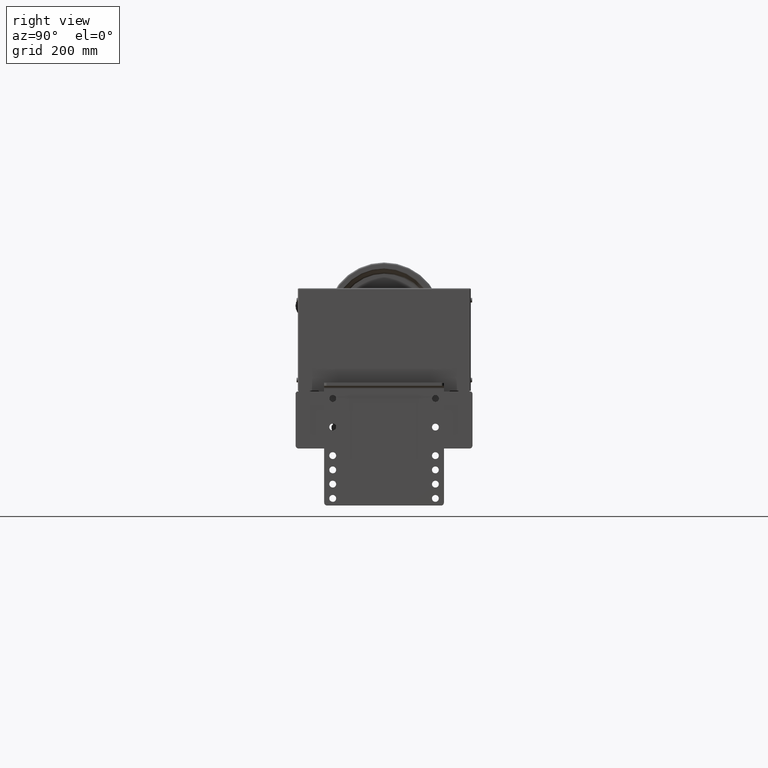
[diagram: clean part render]
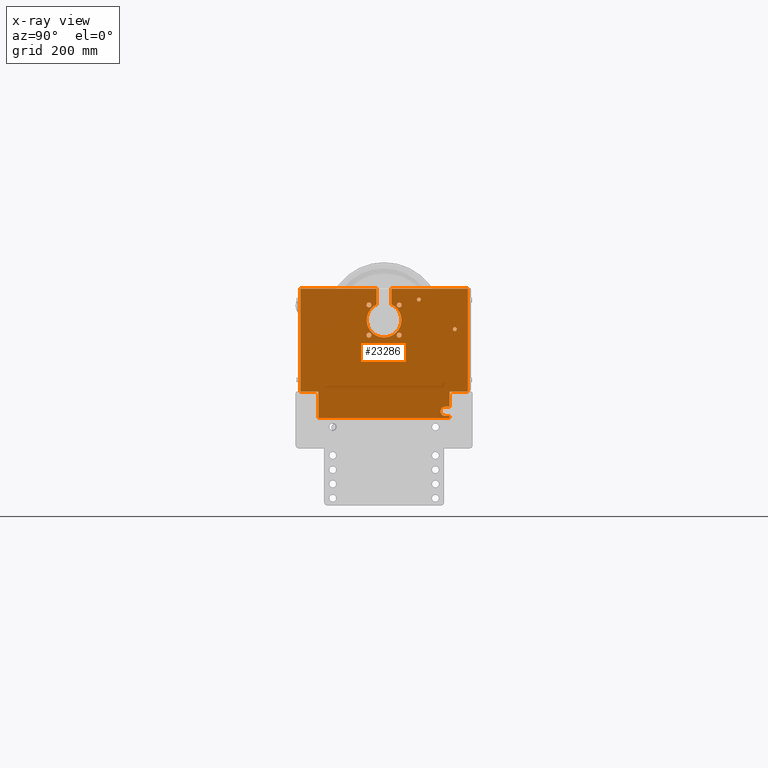
[diagram: x-ray — body ghosted, one internal face saturated and labeled with its STEP entity id]
A machine part, right view, then the same camera in x-ray: the body is ghosted and one INTERNAL B-rep face — a face not visible from any outside direction — is saturated and labeled: STEP entity #23286.
In plain terms, the highlighted planar face has unit normal (-1, -0, 0).
Its self-contained STEP definition (entity closure, byte-faithful):
#21658=CARTESIAN_POINT('',(-22.141504294496144,3.483495705504765,1.500000000000000));
#21659=VERTEX_POINT('',#21658);
#21668=CARTESIAN_POINT('',(-30.891504294496144,3.483495705504765,1.500000000000000));
#21669=VERTEX_POINT('',#21668);
#21670=CARTESIAN_POINT('',(-26.516504294496144,3.483495705504765,1.500000000000000));
#21671=DIRECTION('',(0.0,0.0,1.0));
#21672=DIRECTION('',(1.0,0.0,0.0));
#21673=AXIS2_PLACEMENT_3D('',#21670,#21671,#21672);
#21674=CIRCLE('',#21673,4.375000000000000);
#21675=EDGE_CURVE('',#21659,#21669,#21674,.T.);
#21700=CARTESIAN_POINT('',(30.891504294494780,3.483495705504765,1.500000000000000));
#21701=VERTEX_POINT('',#21700);
#21710=CARTESIAN_POINT('',(22.141504294494780,3.483495705504765,1.500000000000000));
#21711=VERTEX_POINT('',#21710);
#21712=CARTESIAN_POINT('',(26.516504294494780,3.483495705504765,1.500000000000000));
#21713=DIRECTION('',(0.0,0.0,1.0));
#21714=DIRECTION('',(1.0,0.0,0.0));
#21715=AXIS2_PLACEMENT_3D('',#21712,#21713,#21714);
#21716=CIRCLE('',#21715,4.375000000000000);
#21717=EDGE_CURVE('',#21701,#21711,#21716,.T.);
#21742=CARTESIAN_POINT('',(30.891504294494780,56.516504294495917,1.500000000000000));
#21743=VERTEX_POINT('',#21742);
#21752=CARTESIAN_POINT('',(22.141504294494780,56.516504294495917,1.500000000000000));
#21753=VERTEX_POINT('',#21752);
#21754=CARTESIAN_POINT('',(26.516504294494780,56.516504294495917,1.500000000000000));
#21755=DIRECTION('',(0.0,0.0,1.0));
#21756=DIRECTION('',(1.0,0.0,0.0));
#21757=AXIS2_PLACEMENT_3D('',#21754,#21755,#21756);
#21758=CIRCLE('',#21757,4.375000000000000);
#21759=EDGE_CURVE('',#21743,#21753,#21758,.T.);
#21784=CARTESIAN_POINT('',(-22.141504294496372,56.516504294495917,1.500000000000000));
#21785=VERTEX_POINT('',#21784);
#21794=CARTESIAN_POINT('',(-30.891504294496372,56.516504294495917,1.500000000000000));
#21795=VERTEX_POINT('',#21794);
#21796=CARTESIAN_POINT('',(-26.516504294496372,56.516504294495917,1.500000000000000));
#21797=DIRECTION('',(0.0,0.0,1.0));
#21798=DIRECTION('',(1.0,0.0,0.0));
#21799=AXIS2_PLACEMENT_3D('',#21796,#21797,#21798);
#21800=CIRCLE('',#21799,4.375000000000000);
#21801=EDGE_CURVE('',#21785,#21795,#21800,.T.);
#21996=CARTESIAN_POINT('',(-57.550000000000907,66.000000000000227,1.500000000000000));
#21997=VERTEX_POINT('',#21996);
#22013=CARTESIAN_POINT('',(-64.450000000000912,66.000000000000227,1.500000000000000));
#22014=VERTEX_POINT('',#22013);
#22021=CARTESIAN_POINT('',(-61.000000000000909,66.000000000000227,1.500000000000000));
#22022=DIRECTION('',(0.0,0.0,-1.0));
#22023=DIRECTION('',(1.0,0.0,0.0));
#22024=AXIS2_PLACEMENT_3D('',#22021,#22022,#22023);
#22025=CIRCLE('',#22024,3.450000000000000);
#22026=EDGE_CURVE('',#21997,#22014,#22025,.T.);
#22038=CARTESIAN_POINT('',(-120.550000000000910,14.000000000000227,1.500000000000000));
#22039=VERTEX_POINT('',#22038);
#22055=CARTESIAN_POINT('',(-127.450000000000910,14.000000000000227,1.500000000000000));
#22056=VERTEX_POINT('',#22055);
#22063=CARTESIAN_POINT('',(-124.000000000000910,14.000000000000227,1.500000000000000));
#22064=DIRECTION('',(0.0,0.0,-1.0));
#22065=DIRECTION('',(1.0,0.0,0.0));
#22066=AXIS2_PLACEMENT_3D('',#22063,#22064,#22065);
#22067=CIRCLE('',#22066,3.450000000000000);
#22068=EDGE_CURVE('',#22039,#22056,#22067,.T.);
#22211=CARTESIAN_POINT('',(-124.000000000000910,14.000000000000227,1.500000000000000));
#22212=DIRECTION('',(0.0,0.0,-1.0));
#22213=DIRECTION('',(1.0,0.0,0.0));
#22214=AXIS2_PLACEMENT_3D('',#22211,#22212,#22213);
#22215=CIRCLE('',#22214,3.450000000000000);
#22216=EDGE_CURVE('',#22056,#22039,#22215,.T.);
#22235=CARTESIAN_POINT('',(-61.000000000000909,66.000000000000227,1.500000000000000));
#22236=DIRECTION('',(0.0,0.0,-1.0));
#22237=DIRECTION('',(1.0,0.0,0.0));
#22238=AXIS2_PLACEMENT_3D('',#22235,#22236,#22237);
#22239=CIRCLE('',#22238,3.450000000000000);
#22240=EDGE_CURVE('',#22014,#21997,#22239,.T.);
#22354=CARTESIAN_POINT('',(147.000000000000910,-94.999999999999773,1.500000000000000));
#22355=VERTEX_POINT('',#22354);
#22356=CARTESIAN_POINT('',(147.000000000000910,85.000000000000341,1.500000000000000));
#22357=VERTEX_POINT('',#22356);
#22358=CARTESIAN_POINT('',(147.000000000000910,-94.999999999999773,1.500000000000000));
#22359=DIRECTION('',(0.0,1.0,0.0));
#22360=VECTOR('',#22359,180.000000000000110);
#22361=LINE('',#22358,#22360);
#22362=EDGE_CURVE('',#22355,#22357,#22361,.T.);
#22437=CARTESIAN_POINT('',(-147.000000000000910,85.000000000000227,1.500000000000000));
#22438=VERTEX_POINT('',#22437);
#22439=CARTESIAN_POINT('',(-147.000000000001080,-94.999999999999773,1.500000000000000));
#22440=VERTEX_POINT('',#22439);
#22441=CARTESIAN_POINT('',(-147.000000000000910,85.000000000000227,1.500000000000000));
#22442=DIRECTION('',(0.0,-1.0,0.0));
#22443=VECTOR('',#22442,180.0);
#22444=LINE('',#22441,#22443);
#22445=EDGE_CURVE('',#22438,#22440,#22444,.T.);
#22516=CARTESIAN_POINT('',(-115.000000000001360,-141.999999999999770,1.500000000000000));
#22517=VERTEX_POINT('',#22516);
#22518=CARTESIAN_POINT('',(115.0,-141.999999999999770,1.500000000000000));
#22519=VERTEX_POINT('',#22518);
#22520=CARTESIAN_POINT('',(-115.000000000001360,-141.999999999999770,1.500000000000000));
#22521=DIRECTION('',(1.0,0.0,0.0));
#22522=VECTOR('',#22521,230.000000000001360);
#22523=LINE('',#22520,#22522);
#22524=EDGE_CURVE('',#22517,#22519,#22523,.T.);
#22601=CARTESIAN_POINT('',(12.999999999999091,85.000000000000455,1.500000000000000));
#22602=VERTEX_POINT('',#22601);
#22609=CARTESIAN_POINT('',(12.999999999999091,85.000000000000455,1.500000000000000));
#22610=DIRECTION('',(1.0,0.0,0.0));
#22611=VECTOR('',#22610,134.000000000001820);
#22612=LINE('',#22609,#22611);
#22613=EDGE_CURVE('',#22602,#22357,#22612,.T.);
#22631=CARTESIAN_POINT('',(114.999999999999090,-94.999999999999773,1.500000000000000));
#22632=VERTEX_POINT('',#22631);
#22633=CARTESIAN_POINT('',(147.000000000000910,-94.999999999999773,1.500000000000000));
#22634=DIRECTION('',(-1.0,0.0,0.0));
#22635=VECTOR('',#22634,32.000000000001819);
#22636=LINE('',#22633,#22635);
#22637=EDGE_CURVE('',#22355,#22632,#22636,.T.);
#22671=CARTESIAN_POINT('',(-13.000000000000682,85.000000000000227,1.500000000000000));
#22672=VERTEX_POINT('',#22671);
#22673=CARTESIAN_POINT('',(-147.000000000000910,85.000000000000227,1.500000000000000));
#22674=DIRECTION('',(1.0,0.0,0.0));
#22675=VECTOR('',#22674,134.000000000000230);
#22676=LINE('',#22673,#22675);
#22677=EDGE_CURVE('',#22438,#22672,#22676,.T.);
#22720=CARTESIAN_POINT('',(114.999999999999090,-94.999999999999773,1.500000000000000));
#22721=DIRECTION('',(0.0,-1.0,0.0));
#22722=VECTOR('',#22721,47.0);
#22723=LINE('',#22720,#22722);
#22724=EDGE_CURVE('',#22632,#22519,#22723,.T.);
#22894=CARTESIAN_POINT('',(-115.000000000000910,-137.999999999999770,1.500000000000000));
#22895=VERTEX_POINT('',#22894);
#22896=CARTESIAN_POINT('',(-115.000000000001360,-141.999999999999770,1.500000000000000));
#22897=DIRECTION('',(1.136868E-013,1.0,0.0));
#22898=VECTOR('',#22897,4.0);
#22899=LINE('',#22896,#22898);
#22900=EDGE_CURVE('',#22517,#22895,#22899,.T.);
#22925=CARTESIAN_POINT('',(-13.000000000001137,57.590759322643180,1.500000000000000));
#22926=VERTEX_POINT('',#22925);
#22927=CARTESIAN_POINT('',(-13.000000000000682,85.000000000000227,1.500000000000000));
#22928=DIRECTION('',(0.0,-1.0,0.0));
#22929=VECTOR('',#22928,27.409240677357047);
#22930=LINE('',#22927,#22929);
#22931=EDGE_CURVE('',#22672,#22926,#22930,.T.);
#22949=CARTESIAN_POINT('',(12.999999999999091,57.590759322643180,1.500000000000000));
#22950=VERTEX_POINT('',#22949);
#22951=CARTESIAN_POINT('',(1.818989E-012,29.999999999996817,1.500000000000000));
#22952=DIRECTION('',(0.0,0.0,1.0));
#22953=DIRECTION('',(1.0,0.0,0.0));
#22954=AXIS2_PLACEMENT_3D('',#22951,#22952,#22953);
#22955=CIRCLE('',#22954,30.500000000000000);
#22956=EDGE_CURVE('',#22926,#22950,#22955,.T.);
#22974=CARTESIAN_POINT('',(12.999999999999091,57.590759322643180,1.500000000000000));
#22975=DIRECTION('',(0.0,1.0,0.0));
#22976=VECTOR('',#22975,27.409240677357275);
#22977=LINE('',#22974,#22976);
#22978=EDGE_CURVE('',#22950,#22602,#22977,.T.);
#23031=CARTESIAN_POINT('',(-107.000000000000910,-137.999999999999770,1.500000000000000));
#23032=VERTEX_POINT('',#23031);
#23033=CARTESIAN_POINT('',(-115.000000000000910,-137.999999999999770,1.500000000000000));
#23034=DIRECTION('',(1.0,0.0,0.0));
#23035=VECTOR('',#23034,8.0);
#23036=LINE('',#23033,#23035);
#23037=EDGE_CURVE('',#22895,#23032,#23036,.T.);
#23055=CARTESIAN_POINT('',(-107.000000000000910,-121.999999999999770,1.500000000000000));
#23056=VERTEX_POINT('',#23055);
#23057=CARTESIAN_POINT('',(-107.000000000000910,-129.999999999999770,1.500000000000000));
#23058=DIRECTION('',(0.0,0.0,1.0));
#23059=DIRECTION('',(1.0,0.0,0.0));
#23060=AXIS2_PLACEMENT_3D('',#23057,#23058,#23059);
#23061=CIRCLE('',#23060,8.0);
#23062=EDGE_CURVE('',#23032,#23056,#23061,.T.);
#23080=CARTESIAN_POINT('',(-115.000000000000910,-121.999999999999770,1.500000000000000));
#23081=VERTEX_POINT('',#23080);
#23082=CARTESIAN_POINT('',(-107.000000000000910,-121.999999999999770,1.500000000000000));
#23083=DIRECTION('',(-1.0,0.0,0.0));
#23084=VECTOR('',#23083,8.0);
#23085=LINE('',#23082,#23084);
#23086=EDGE_CURVE('',#23056,#23081,#23085,.T.);
#23104=CARTESIAN_POINT('',(-115.000000000000910,-94.999999999999773,1.500000000000000));
#23105=VERTEX_POINT('',#23104);
#23106=CARTESIAN_POINT('',(-115.000000000000910,-121.999999999999770,1.500000000000000));
#23107=DIRECTION('',(0.0,1.0,0.0));
#23108=VECTOR('',#23107,27.0);
#23109=LINE('',#23106,#23108);
#23110=EDGE_CURVE('',#23081,#23105,#23109,.T.);
#23130=CARTESIAN_POINT('',(-115.000000000000910,-94.999999999999773,1.500000000000000));
#23131=DIRECTION('',(-1.0,0.0,0.0));
#23132=VECTOR('',#23131,32.000000000000171);
#23133=LINE('',#23130,#23132);
#23134=EDGE_CURVE('',#23105,#22440,#23133,.T.);
#23175=CARTESIAN_POINT('',(-26.516504294496372,56.516504294495917,1.500000000000000));
#23176=DIRECTION('',(0.0,0.0,1.0));
#23177=DIRECTION('',(1.0,0.0,0.0));
#23178=AXIS2_PLACEMENT_3D('',#23175,#23176,#23177);
#23179=CIRCLE('',#23178,4.375000000000000);
#23180=EDGE_CURVE('',#21795,#21785,#23179,.T.);
#23193=CARTESIAN_POINT('',(26.516504294494780,56.516504294495917,1.500000000000000));
#23194=DIRECTION('',(0.0,0.0,1.0));
#23195=DIRECTION('',(1.0,0.0,0.0));
#23196=AXIS2_PLACEMENT_3D('',#23193,#23194,#23195);
#23197=CIRCLE('',#23196,4.375000000000000);
#23198=EDGE_CURVE('',#21753,#21743,#23197,.T.);
#23211=CARTESIAN_POINT('',(26.516504294494780,3.483495705504765,1.500000000000000));
#23212=DIRECTION('',(0.0,0.0,1.0));
#23213=DIRECTION('',(1.0,0.0,0.0));
#23214=AXIS2_PLACEMENT_3D('',#23211,#23212,#23213);
#23215=CIRCLE('',#23214,4.375000000000000);
#23216=EDGE_CURVE('',#21711,#21701,#23215,.T.);
#23229=CARTESIAN_POINT('',(-26.516504294496144,3.483495705504765,1.500000000000000));
#23230=DIRECTION('',(0.0,0.0,1.0));
#23231=DIRECTION('',(1.0,0.0,0.0));
#23232=AXIS2_PLACEMENT_3D('',#23229,#23230,#23231);
#23233=CIRCLE('',#23232,4.375000000000000);
#23234=EDGE_CURVE('',#21669,#21659,#23233,.T.);
#23239=CARTESIAN_POINT('',(-1.962729134460005,-19.719278056207941,1.500000000000000));
#23240=DIRECTION('',(0.0,0.0,1.0));
#23241=DIRECTION('',(1.0,0.0,0.0));
#23242=AXIS2_PLACEMENT_3D('',#23239,#23240,#23241);
#23243=PLANE('',#23242);
#23244=ORIENTED_EDGE('',*,*,#22362,.T.);
#23245=ORIENTED_EDGE('',*,*,#22613,.F.);
#23246=ORIENTED_EDGE('',*,*,#22978,.F.);
#23247=ORIENTED_EDGE('',*,*,#22956,.F.);
#23248=ORIENTED_EDGE('',*,*,#22931,.F.);
#23249=ORIENTED_EDGE('',*,*,#22677,.F.);
#23250=ORIENTED_EDGE('',*,*,#22445,.T.);
#23251=ORIENTED_EDGE('',*,*,#23134,.F.);
#23252=ORIENTED_EDGE('',*,*,#23110,.F.);
#23253=ORIENTED_EDGE('',*,*,#23086,.F.);
#23254=ORIENTED_EDGE('',*,*,#23062,.F.);
#23255=ORIENTED_EDGE('',*,*,#23037,.F.);
#23256=ORIENTED_EDGE('',*,*,#22900,.F.);
#23257=ORIENTED_EDGE('',*,*,#22524,.T.);
#23258=ORIENTED_EDGE('',*,*,#22724,.F.);
#23259=ORIENTED_EDGE('',*,*,#22637,.F.);
#23260=EDGE_LOOP('',(#23244,#23245,#23246,#23247,#23248,#23249,#23250,#23251,#23252,#23253,#23254,#23255,#23256,#23257,#23258,#23259));
#23261=FACE_OUTER_BOUND('',#23260,.T.);
#23262=ORIENTED_EDGE('',*,*,#22216,.T.);
#23263=ORIENTED_EDGE('',*,*,#22068,.T.);
#23264=EDGE_LOOP('',(#23262,#23263));
#23265=FACE_BOUND('',#23264,.T.);
#23266=ORIENTED_EDGE('',*,*,#22240,.T.);
#23267=ORIENTED_EDGE('',*,*,#22026,.T.);
#23268=EDGE_LOOP('',(#23266,#23267));
#23269=FACE_BOUND('',#23268,.T.);
#23270=ORIENTED_EDGE('',*,*,#21675,.F.);
#23271=ORIENTED_EDGE('',*,*,#23234,.F.);
#23272=EDGE_LOOP('',(#23270,#23271));
#23273=FACE_BOUND('',#23272,.T.);
#23274=ORIENTED_EDGE('',*,*,#21717,.F.);
#23275=ORIENTED_EDGE('',*,*,#23216,.F.);
#23276=EDGE_LOOP('',(#23274,#23275));
#23277=FACE_BOUND('',#23276,.T.);
#23278=ORIENTED_EDGE('',*,*,#21759,.F.);
#23279=ORIENTED_EDGE('',*,*,#23198,.F.);
#23280=EDGE_LOOP('',(#23278,#23279));
#23281=FACE_BOUND('',#23280,.T.);
#23282=ORIENTED_EDGE('',*,*,#21801,.F.);
#23283=ORIENTED_EDGE('',*,*,#23180,.F.);
#23284=EDGE_LOOP('',(#23282,#23283));
#23285=FACE_BOUND('',#23284,.T.);
#23286=ADVANCED_FACE('',(#23261,#23265,#23269,#23273,#23277,#23281,#23285),#23243,.T.);